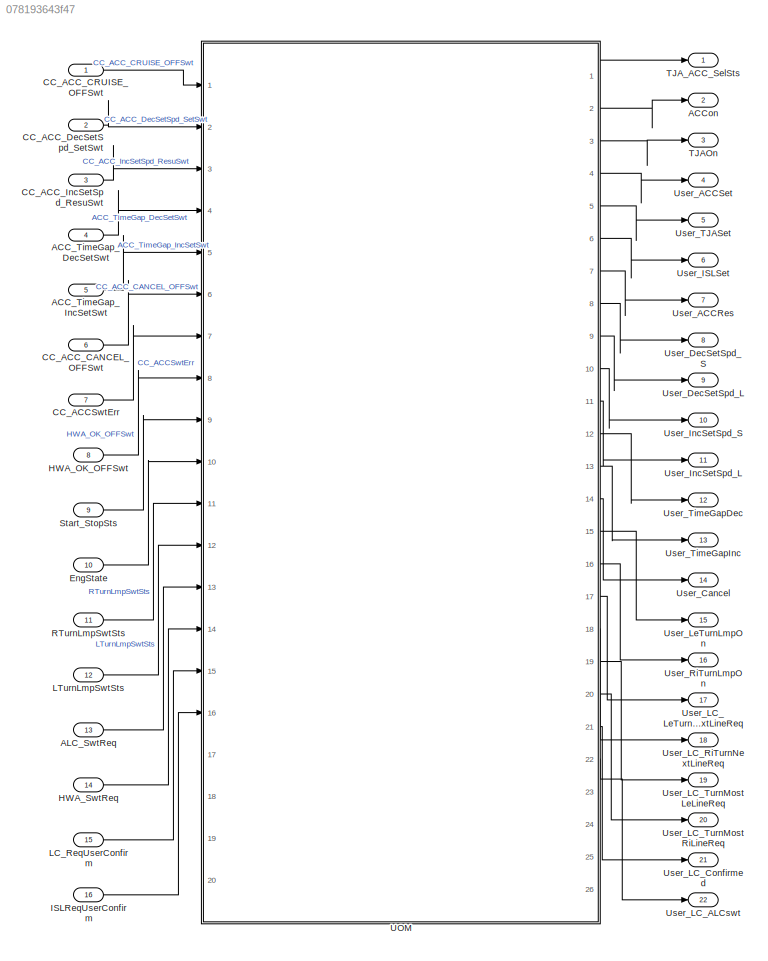
MODEL slx_078193643f47
KIND model
CONFIG AbsTol = auto
CONFIG EnableMultiTasking = off
CONFIG FixedStep = auto
CONFIG InitFcn = , if any(exist('dsmpb_private', 'file') ~= 0), dsmpb_private('dsmpb_mdlclblib', 'Init', bdroot); end,\n
CONFIG MaxStep = auto
CONFIG MinStep = auto
CONFIG PostLoadFcn = if any(exist('dsrtsu_mdlpostloadfcn', 'file') ~= 0), dsrtsu_mdlpostloadfcn('Execute', bdroot); end
CONFIG RelTol = 1e-3
CONFIG SampleTimeConstraint = Unconstrained
CONFIG SolverName = FixedStepAuto
CONFIG StartTime = 0.0
CONFIG StopTime = Inf
BLOCK [Inport] ACC_TimeGap_DecSetSwt
  OutDataTypeStr = boolean
  Port = 4
  PortDimensions = 1
BLOCK [Inport] ACC_TimeGap_IncSetSwt
  OutDataTypeStr = boolean
  Port = 5
  PortDimensions = 1
BLOCK [Outport] ACCon
  OutDataTypeStr = boolean
  Port = 2
BLOCK [Inport] ALC_SwtReq
  OutDataTypeStr = boolean
  Port = 13
BLOCK [Inport] CC_ACCSwtErr
  OutDataTypeStr = boolean
  Port = 7
  PortDimensions = 1
BLOCK [Inport] CC_ACC_CANCEL_OFFSwt
  OutDataTypeStr = boolean
  Port = 6
  PortDimensions = 1
BLOCK [Inport] CC_ACC_CRUISE_OFFSwt
  OutDataTypeStr = boolean
  PortDimensions = 1
BLOCK [Inport] CC_ACC_DecSetSpd_SetSwt
  OutDataTypeStr = boolean
  Port = 2
  PortDimensions = 1
BLOCK [Inport] CC_ACC_IncSetSpd_ResuSwt
  OutDataTypeStr = boolean
  Port = 3
  PortDimensions = 1
BLOCK [Inport] EngState
  OutDataTypeStr = uint8
  Port = 10
BLOCK [Inport] HWA_OK_OFFSwt
  OutDataTypeStr = boolean
  Port = 8
  PortDimensions = 1
BLOCK [Inport] HWA_SwtReq
  OutDataTypeStr = boolean
  Port = 14
BLOCK [Inport] ISLReqUserConfirm
  OutDataTypeStr = boolean
  Port = 16
BLOCK [Inport] LC_ReqUserConfirm
  OutDataTypeStr = boolean
  Port = 15
BLOCK [Inport] LTurnLmpSwtSts
  OutDataTypeStr = boolean
  Port = 12
  PortDimensions = 1
BLOCK [Inport] RTurnLmpSwtSts
  OutDataTypeStr = boolean
  Port = 11
  PortDimensions = 1
BLOCK [Inport] Start_StopSts
  OutDataTypeStr = uint8
  Port = 9
BLOCK [Outport] TJAOn
  OutDataTypeStr = boolean
  Port = 3
BLOCK [Outport] TJA_ACC_SelSts
  OutDataTypeStr = uint8
BLOCK [SubSystem] UOM
  Ports = [20, 26]
  ReferencedSubsystem = PvtSubSys_VSM_UOM
  RequestExecContextInheritance = off
BLOCK [Outport] User_ACCRes
  OutDataTypeStr = boolean
  Port = 7
BLOCK [Outport] User_ACCSet
  OutDataTypeStr = boolean
  Port = 4
BLOCK [Outport] User_Cancel
  OutDataTypeStr = boolean
  Port = 14
BLOCK [Outport] User_DecSetSpd_L
  OutDataTypeStr = boolean
  Port = 9
BLOCK [Outport] User_DecSetSpd_S
  OutDataTypeStr = boolean
  Port = 8
BLOCK [Outport] User_ISLSet
  OutDataTypeStr = boolean
  Port = 6
BLOCK [Outport] User_IncSetSpd_L
  OutDataTypeStr = boolean
  Port = 11
BLOCK [Outport] User_IncSetSpd_S
  OutDataTypeStr = boolean
  Port = 10
BLOCK [Outport] User_LC_ALCswt
  OutDataTypeStr = uint8
  Port = 22
BLOCK [Outport] User_LC_Confirmed
  OutDataTypeStr = boolean
  Port = 21
BLOCK [Outport] User_LC_LeTurnNextLineReq
  OutDataTypeStr = boolean
  Port = 17
BLOCK [Outport] User_LC_RiTurnNextLineReq
  OutDataTypeStr = boolean
  Port = 18
BLOCK [Outport] User_LC_TurnMostLeLineReq
  OutDataTypeStr = boolean
  Port = 19
BLOCK [Outport] User_LC_TurnMostRiLineReq
  OutDataTypeStr = boolean
  Port = 20
BLOCK [Outport] User_LeTurnLmpOn
  OutDataTypeStr = boolean
  Port = 15
BLOCK [Outport] User_RiTurnLmpOn
  OutDataTypeStr = boolean
  Port = 16
BLOCK [Outport] User_TJASet
  OutDataTypeStr = boolean
  Port = 5
BLOCK [Outport] User_TimeGapDec
  OutDataTypeStr = boolean
  Port = 12
BLOCK [Outport] User_TimeGapInc
  OutDataTypeStr = boolean
  Port = 13
LINE ACC_TimeGap_DecSetSwt:1 -> UOM:4
LINE ACC_TimeGap_IncSetSwt:1 -> UOM:5
LINE ALC_SwtReq:1 -> UOM:13
LINE CC_ACCSwtErr:1 -> UOM:7
LINE CC_ACC_CANCEL_OFFSwt:1 -> UOM:6
LINE CC_ACC_CRUISE_OFFSwt:1 -> UOM:1
LINE CC_ACC_DecSetSpd_SetSwt:1 -> UOM:2
LINE CC_ACC_IncSetSpd_ResuSwt:1 -> UOM:3
LINE EngState:1 -> UOM:10
LINE HWA_OK_OFFSwt:1 -> UOM:8
LINE HWA_SwtReq:1 -> UOM:14
LINE ISLReqUserConfirm:1 -> UOM:16
LINE LC_ReqUserConfirm:1 -> UOM:15
LINE LTurnLmpSwtSts:1 -> UOM:12
LINE RTurnLmpSwtSts:1 -> UOM:11
LINE Start_StopSts:1 -> UOM:9
LINE UOM:1 -> TJA_ACC_SelSts:1
LINE UOM:10 -> User_IncSetSpd_S:1
LINE UOM:11 -> User_IncSetSpd_L:1
LINE UOM:12 -> User_TimeGapDec:1
LINE UOM:13 -> User_TimeGapInc:1
LINE UOM:14 -> User_Cancel:1
LINE UOM:15 -> User_LeTurnLmpOn:1
LINE UOM:16 -> User_RiTurnLmpOn:1
LINE UOM:17 -> User_LC_LeTurnNextLineReq:1
LINE UOM:18 -> User_LC_RiTurnNextLineReq:1
LINE UOM:19 -> User_LC_TurnMostLeLineReq:1
LINE UOM:2 -> ACCon:1
LINE UOM:20 -> User_LC_TurnMostRiLineReq:1
LINE UOM:21 -> User_LC_Confirmed:1
LINE UOM:22 -> User_LC_ALCswt:1
LINE UOM:3 -> TJAOn:1
LINE UOM:4 -> User_ACCSet:1
LINE UOM:5 -> User_TJASet:1
LINE UOM:6 -> User_ISLSet:1
LINE UOM:7 -> User_ACCRes:1
LINE UOM:8 -> User_DecSetSpd_S:1
LINE UOM:9 -> User_DecSetSpd_L:1
